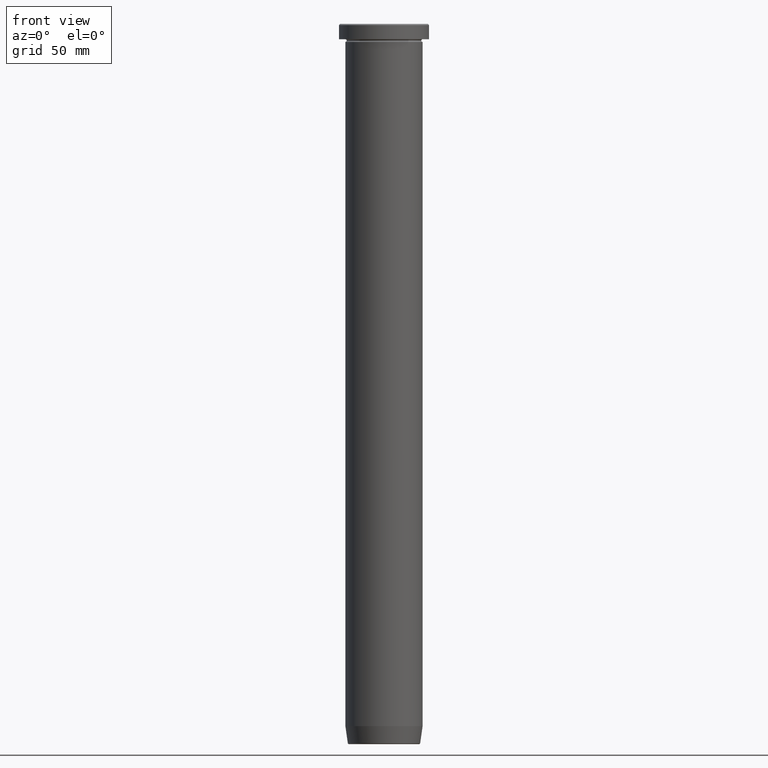
[diagram: clean part render]
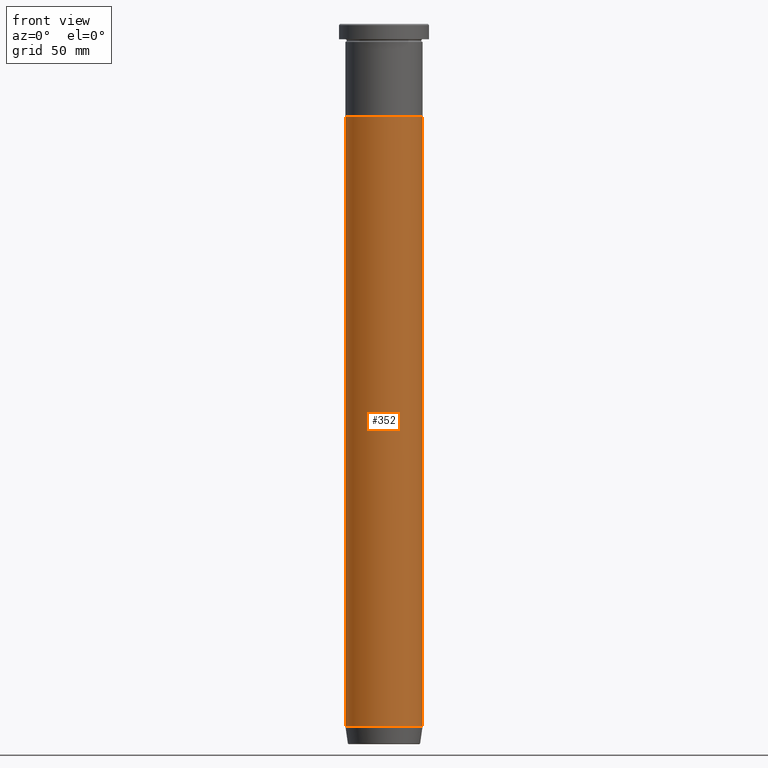
[diagram: same view with one face highlighted and labeled with its STEP entity id]
A machine part, front view. The second image highlights one B-rep face of the part: STEP entity #352.
In plain terms, the highlighted cylindrical surface (partial cylindrical patch) has radius 15 mm, axis along (-0, -0, 1).
Its self-contained STEP definition (entity closure, byte-faithful):
#10 = VERTEX_POINT ( 'NONE', #107 ) ;
#38 = EDGE_CURVE ( 'NONE', #401, #10, #486, .T. ) ;
#48 = ORIENTED_EDGE ( 'NONE', *, *, #226, .T. ) ;
#71 = CARTESIAN_POINT ( 'NONE',  ( -15.00000000000000000, 1.836970198721029589E-15, -272.9999999999999432 ) ) ;
#83 = AXIS2_PLACEMENT_3D ( 'NONE', #299, #253, #431 ) ;
#93 = CIRCLE ( 'NONE', #202, 15.00000000000000000 ) ;
#97 = EDGE_CURVE ( 'NONE', #264, #437, #302, .T. ) ;
#98 = FACE_OUTER_BOUND ( 'NONE', #212, .T. ) ;
#107 = CARTESIAN_POINT ( 'NONE',  ( 15.00000000000000000, 0.000000000000000000, -36.00000000000000000 ) ) ;
#121 = DIRECTION ( 'NONE',  ( -0.000000000000000000, -0.000000000000000000, 1.000000000000000000 ) ) ;
#148 = CARTESIAN_POINT ( 'NONE',  ( -15.00000000000000000, 1.836970198721029589E-15, -36.00000000000000000 ) ) ;
#164 = CARTESIAN_POINT ( 'NONE',  ( 15.00000000000000000, 0.000000000000000000, 0.000000000000000000 ) ) ;
#202 = AXIS2_PLACEMENT_3D ( 'NONE', #573, #121, #403 ) ;
#203 = AXIS2_PLACEMENT_3D ( 'NONE', #257, #598, #472 ) ;
#212 = EDGE_LOOP ( 'NONE', ( #317, #48, #289, #246 ) ) ;
#226 = EDGE_CURVE ( 'NONE', #264, #401, #93, .T. ) ;
#246 = ORIENTED_EDGE ( 'NONE', *, *, #426, .F. ) ;
#253 = DIRECTION ( 'NONE',  ( -0.000000000000000000, -0.000000000000000000, 1.000000000000000000 ) ) ;
#254 = CARTESIAN_POINT ( 'NONE',  ( -15.00000000000000000, 1.836970198721029589E-15, 0.000000000000000000 ) ) ;
#257 = CARTESIAN_POINT ( 'NONE',  ( 0.000000000000000000, 0.000000000000000000, 0.000000000000000000 ) ) ;
#264 = VERTEX_POINT ( 'NONE', #71 ) ;
#289 = ORIENTED_EDGE ( 'NONE', *, *, #38, .T. ) ;
#290 = VECTOR ( 'NONE', #442, 1000.000000000000000 ) ;
#299 = CARTESIAN_POINT ( 'NONE',  ( 0.000000000000000000, 0.000000000000000000, -36.00000000000000000 ) ) ;
#302 = LINE ( 'NONE', #254, #476 ) ;
#317 = ORIENTED_EDGE ( 'NONE', *, *, #97, .F. ) ;
#352 = ADVANCED_FACE ( 'NONE', ( #98 ), #415, .T. ) ;
#369 = CIRCLE ( 'NONE', #83, 15.00000000000000000 ) ;
#380 = CARTESIAN_POINT ( 'NONE',  ( 15.00000000000000000, 0.000000000000000000, -272.9999999999999432 ) ) ;
#401 = VERTEX_POINT ( 'NONE', #380 ) ;
#403 = DIRECTION ( 'NONE',  ( 1.000000000000000000, 0.000000000000000000, 0.000000000000000000 ) ) ;
#415 = CYLINDRICAL_SURFACE ( 'NONE', #203, 15.00000000000000000 ) ;
#426 = EDGE_CURVE ( 'NONE', #437, #10, #369, .T. ) ;
#429 = DIRECTION ( 'NONE',  ( -0.000000000000000000, -0.000000000000000000, 1.000000000000000000 ) ) ;
#431 = DIRECTION ( 'NONE',  ( 1.000000000000000000, 0.000000000000000000, 0.000000000000000000 ) ) ;
#437 = VERTEX_POINT ( 'NONE', #148 ) ;
#442 = DIRECTION ( 'NONE',  ( -0.000000000000000000, -0.000000000000000000, 1.000000000000000000 ) ) ;
#472 = DIRECTION ( 'NONE',  ( 1.000000000000000000, 0.000000000000000000, 0.000000000000000000 ) ) ;
#476 = VECTOR ( 'NONE', #429, 1000.000000000000000 ) ;
#486 = LINE ( 'NONE', #164, #290 ) ;
#573 = CARTESIAN_POINT ( 'NONE',  ( 0.000000000000000000, 0.000000000000000000, -272.9999999999999432 ) ) ;
#598 = DIRECTION ( 'NONE',  ( -0.000000000000000000, -0.000000000000000000, 1.000000000000000000 ) ) ;